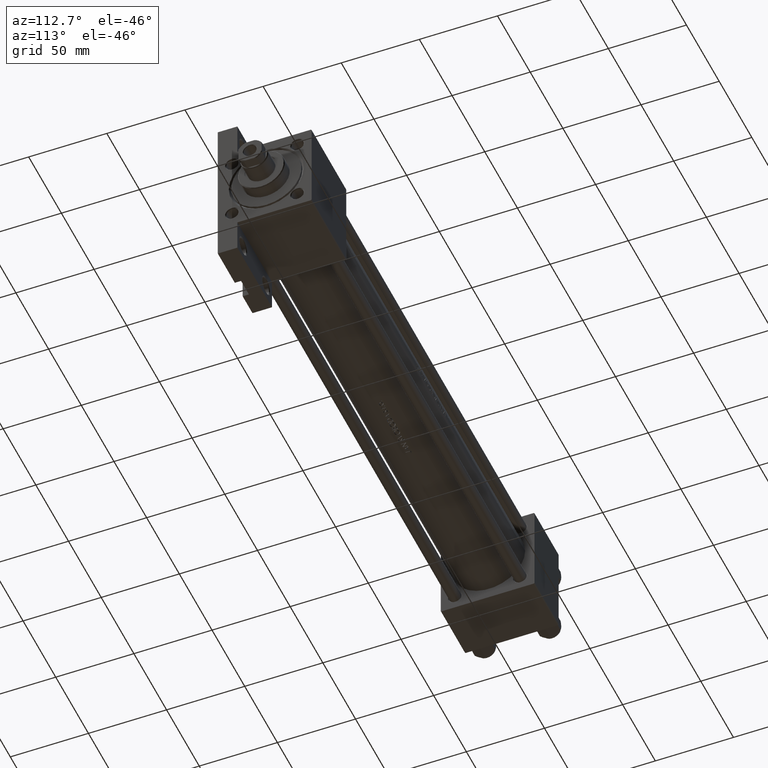
[diagram: clean part render]
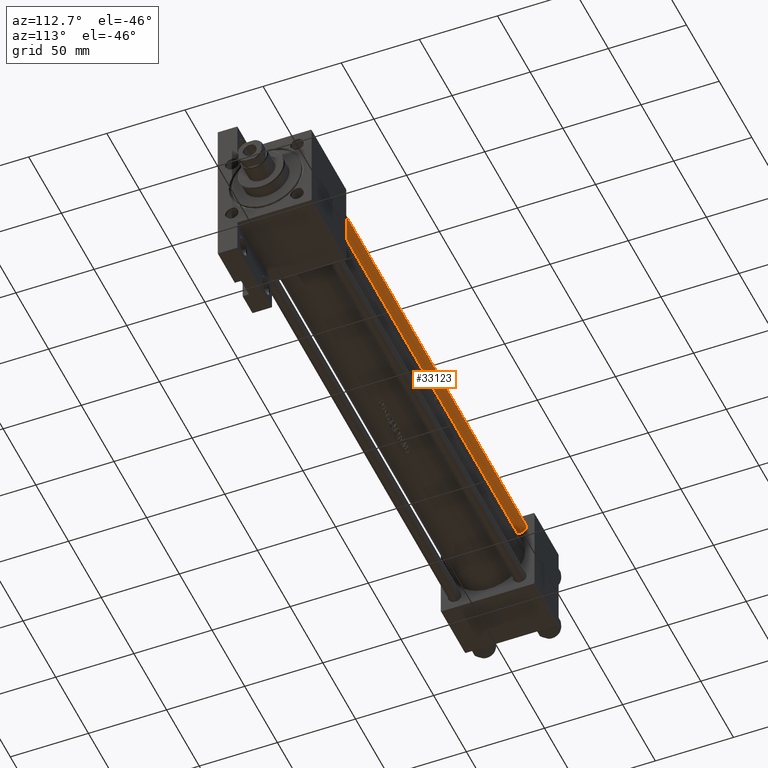
[diagram: same view with one face highlighted and labeled with its STEP entity id]
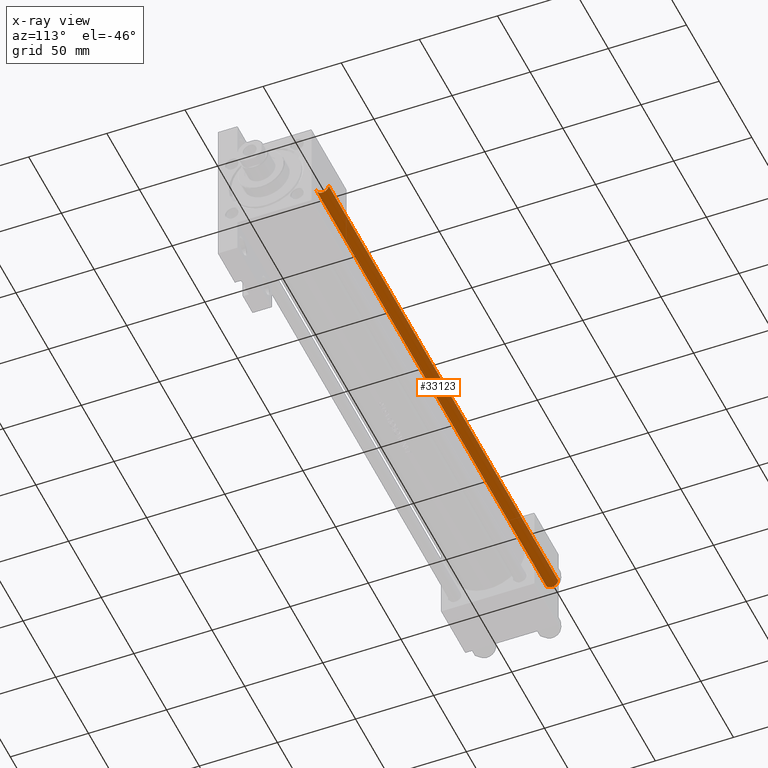
[diagram: x-ray of the same camera — body ghosted, the highlighted face saturated]
A machine part, auxiliary view. The second image highlights one B-rep face of the part: STEP entity #33123.
The next image is the same camera in x-ray: the body ghosted, the highlighted face saturated — about 1% of this face is hidden behind the body in this view.
In plain terms, the highlighted cylindrical surface (edge-blend (fillet) strip) has radius 4 mm, axis along (1, -0, 0).
Its self-contained STEP definition (entity closure, byte-faithful):
#155 = ORIENTED_EDGE ( 'NONE', *, *, #2740, .T. ) ;
#1165 = EDGE_CURVE ( 'NONE', #48445, #10963, #9738, .T. ) ;
#2740 = EDGE_CURVE ( 'NONE', #40880, #48445, #34976, .T. ) ;
#4127 = EDGE_LOOP ( 'NONE', ( #38716, #155, #5581, #32112 ) ) ;
#5581 = ORIENTED_EDGE ( 'NONE', *, *, #1165, .T. ) ;
#6489 = AXIS2_PLACEMENT_3D ( 'NONE', #10570, #21666, #33003 ) ;
#9738 = CIRCLE ( 'NONE', #27846, 4.000000000000000000 ) ;
#10570 = CARTESIAN_POINT ( 'NONE',  ( 0.000000000000000000, 0.000000000000000000, 351.5000000000000000 ) ) ;
#10963 = VERTEX_POINT ( 'NONE', #15746 ) ;
#11536 = DIRECTION ( 'NONE',  ( -0.000000000000000000, -0.000000000000000000, -1.000000000000000000 ) ) ;
#15746 = CARTESIAN_POINT ( 'NONE',  ( -4.000000000000000000, 0.000000000000000000, 0.5000000000000004441 ) ) ;
#16738 = CARTESIAN_POINT ( 'NONE',  ( 4.000000000000000000, 4.898587196589412829E-16, 351.5000000000000000 ) ) ;
#16945 = DIRECTION ( 'NONE',  ( -0.000000000000000000, -0.000000000000000000, 1.000000000000000000 ) ) ;
#18083 = DIRECTION ( 'NONE',  ( 1.000000000000000000, 0.000000000000000000, 0.000000000000000000 ) ) ;
#19902 = LINE ( 'NONE', #26814, #37346 ) ;
#20419 = DIRECTION ( 'NONE',  ( -0.000000000000000000, -0.000000000000000000, -1.000000000000000000 ) ) ;
#21666 = DIRECTION ( 'NONE',  ( 0.000000000000000000, 0.000000000000000000, -1.000000000000000000 ) ) ;
#24875 = CYLINDRICAL_SURFACE ( 'NONE', #43509, 4.000000000000000000 ) ;
#25730 = CARTESIAN_POINT ( 'NONE',  ( 0.000000000000000000, 0.000000000000000000, 0.5000000000000004441 ) ) ;
#26814 = CARTESIAN_POINT ( 'NONE',  ( -4.000000000000000000, 0.000000000000000000, 352.0000000000000000 ) ) ;
#27604 = DIRECTION ( 'NONE',  ( -0.000000000000000000, -0.000000000000000000, -1.000000000000000000 ) ) ;
#27846 = AXIS2_PLACEMENT_3D ( 'NONE', #25730, #16945, #18083 ) ;
#29046 = CARTESIAN_POINT ( 'NONE',  ( -4.000000000000000000, 0.000000000000000000, 351.5000000000000000 ) ) ;
#31120 = VERTEX_POINT ( 'NONE', #29046 ) ;
#32112 = ORIENTED_EDGE ( 'NONE', *, *, #41122, .F. ) ;
#32493 = CIRCLE ( 'NONE', #6489, 4.000000000000000000 ) ;
#33003 = DIRECTION ( 'NONE',  ( 1.000000000000000000, 0.000000000000000000, 0.000000000000000000 ) ) ;
#33123 = ADVANCED_FACE ( 'NONE', ( #43639 ), #24875, .T. ) ;
#33251 = EDGE_CURVE ( 'NONE', #31120, #40880, #32493, .T. ) ;
#33445 = VECTOR ( 'NONE', #20419, 1000.000000000000000 ) ;
#34310 = CARTESIAN_POINT ( 'NONE',  ( 4.000000000000000000, 4.898587196589412829E-16, 0.5000000000000004441 ) ) ;
#34723 = CARTESIAN_POINT ( 'NONE',  ( 4.000000000000000000, 4.898587196589412829E-16, 352.0000000000000000 ) ) ;
#34976 = LINE ( 'NONE', #34723, #33445 ) ;
#35734 = CARTESIAN_POINT ( 'NONE',  ( 0.000000000000000000, 0.000000000000000000, 352.0000000000000000 ) ) ;
#37346 = VECTOR ( 'NONE', #11536, 1000.000000000000000 ) ;
#38716 = ORIENTED_EDGE ( 'NONE', *, *, #33251, .T. ) ;
#40880 = VERTEX_POINT ( 'NONE', #16738 ) ;
#41122 = EDGE_CURVE ( 'NONE', #31120, #10963, #19902, .T. ) ;
#42652 = DIRECTION ( 'NONE',  ( -1.000000000000000000, 0.000000000000000000, 0.000000000000000000 ) ) ;
#43509 = AXIS2_PLACEMENT_3D ( 'NONE', #35734, #27604, #42652 ) ;
#43639 = FACE_OUTER_BOUND ( 'NONE', #4127, .T. ) ;
#48445 = VERTEX_POINT ( 'NONE', #34310 ) ;